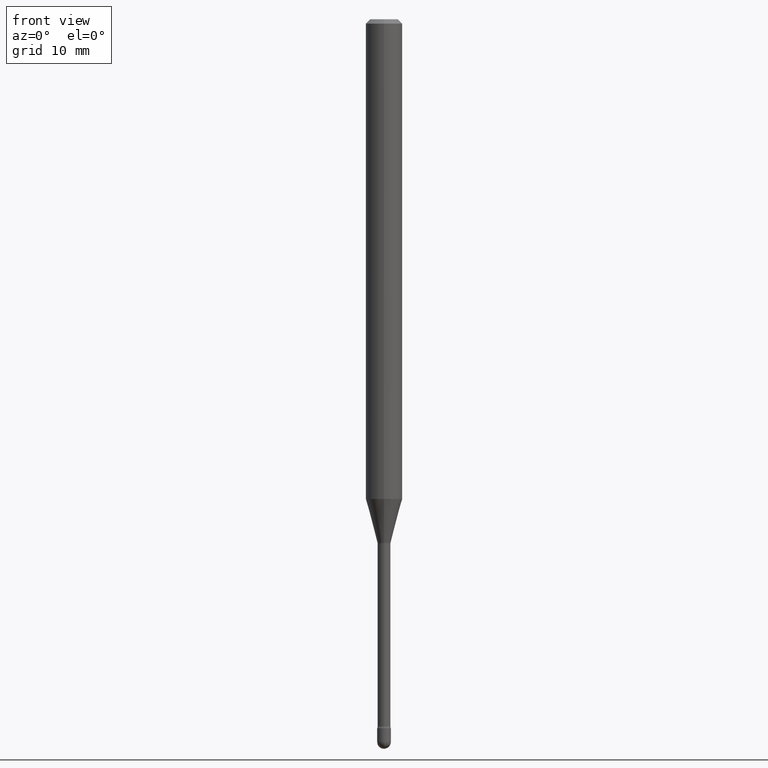
[diagram: clean part render]
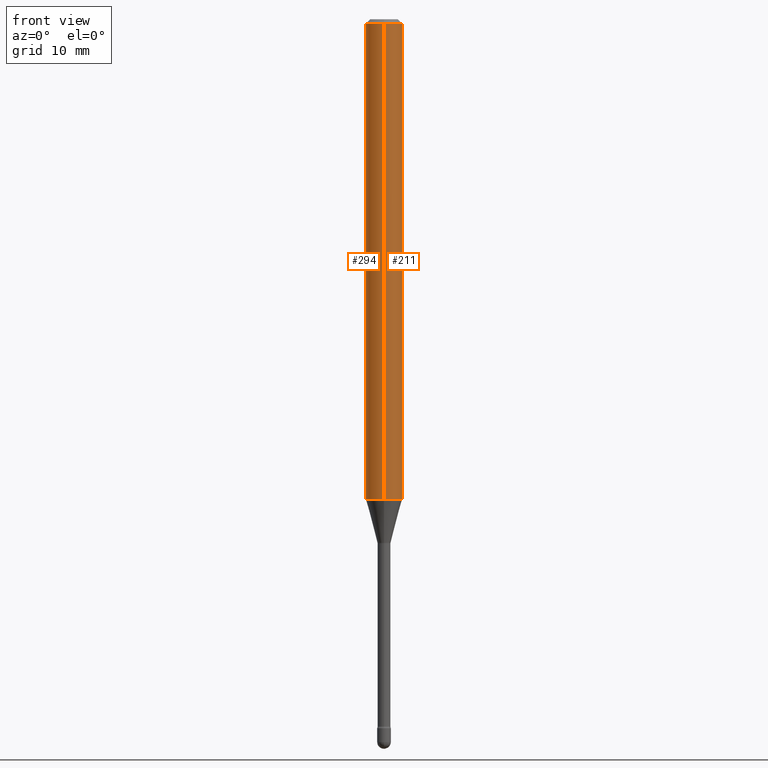
[diagram: same view with one multi-face feature highlighted, each face labeled with its STEP entity id]
A machine part, front view. The highlighted faces form ONE feature: a constant-radius fillet chain: 2 tangent blend faces with common blend radius 1.5875 mm. The faces share edges in the B-rep.
Their STEP definitions:
[1] entity #294 (Cylinder):
#3 = DIRECTION ( 'NONE',  ( -2.445456806742390166E-29, 3.491498522728124281E-15, 1.000000000000000000 ) ) ;
#11 = ORIENTED_EDGE ( 'NONE', *, *, #80, .F. ) ;
#12 = CARTESIAN_POINT ( 'NONE',  ( 4.440892098500625669E-16, 0.06250000000000000000, 2.598547412207382957E-16 ) ) ;
#15 = CARTESIAN_POINT ( 'NONE',  ( -1.169113584055446105E-44, 1.669184350826100908E-30, 4.780733988912460139E-16 ) ) ;
#55 = EDGE_CURVE ( 'NONE', #392, #259, #240, .T. ) ;
#65 = FACE_OUTER_BOUND ( 'NONE', #344, .T. ) ;
#80 = EDGE_CURVE ( 'NONE', #392, #419, #125, .T. ) ;
#85 = VECTOR ( 'NONE', #274, 39.37007874015748143 ) ;
#87 = DIRECTION ( 'NONE',  ( -2.445456806742390166E-29, 3.491498522728124281E-15, 1.000000000000000000 ) ) ;
#111 = ORIENTED_EDGE ( 'NONE', *, *, #150, .F. ) ;
#113 = DIRECTION ( 'NONE',  ( -6.982962677686265922E-15, -1.000000000000000000, 3.491498522728124676E-15 ) ) ;
#122 = CARTESIAN_POINT ( 'NONE',  ( 4.020881578463291233E-29, -5.740809673089514133E-15, -1.644225147374217988 ) ) ;
#125 = LINE ( 'NONE', #12, #223 ) ;
#138 = DIRECTION ( 'NONE',  ( -2.445456806742389886E-29, 3.491498522728124281E-15, 1.000000000000000000 ) ) ;
#143 = AXIS2_PLACEMENT_3D ( 'NONE', #268, #3, #405 ) ;
#150 = EDGE_CURVE ( 'NONE', #419, #162, #358, .T. ) ;
#157 = CYLINDRICAL_SURFACE ( 'NONE', #555, 0.06250000000000000000 ) ;
#162 = VERTEX_POINT ( 'NONE', #527 ) ;
#186 = LINE ( 'NONE', #446, #85 ) ;
#199 = EDGE_CURVE ( 'NONE', #259, #162, #186, .T. ) ;
#223 = VECTOR ( 'NONE', #138, 39.37007874015748143 ) ;
#238 = CARTESIAN_POINT ( 'NONE',  ( 4.440892098501030453E-16, 0.06249999999999995143, -0.01500000000000030129 ) ) ;
#240 = CIRCLE ( 'NONE', #388, 0.06250000000000000000 ) ;
#250 = DIRECTION ( 'NONE',  ( -2.445456806742390166E-29, 3.491498522728124281E-15, 1.000000000000000000 ) ) ;
#259 = VERTEX_POINT ( 'NONE', #407 ) ;
#268 = CARTESIAN_POINT ( 'NONE',  ( 3.668185210113605428E-31, -5.237247784092215166E-17, -0.01500000000000008271 ) ) ;
#274 = DIRECTION ( 'NONE',  ( -2.445456806742389886E-29, 3.491498522728124281E-15, 1.000000000000000000 ) ) ;
#294 = ADVANCED_FACE ( 'NONE', ( #65 ), #157, .T. ) ;
#344 = EDGE_LOOP ( 'NONE', ( #11, #450, #409, #111 ) ) ;
#358 = CIRCLE ( 'NONE', #143, 0.06250000000000000000 ) ;
#388 = AXIS2_PLACEMENT_3D ( 'NONE', #122, #87, #437 ) ;
#392 = VERTEX_POINT ( 'NONE', #408 ) ;
#405 = DIRECTION ( 'NONE',  ( -6.982962677686265922E-15, -1.000000000000000000, 3.483106191921935554E-15 ) ) ;
#407 = CARTESIAN_POINT ( 'NONE',  ( -4.364351673553515854E-16, -0.06250000000000575928, -1.644225147374217544 ) ) ;
#408 = CARTESIAN_POINT ( 'NONE',  ( 4.440892098501025523E-16, 0.06249999999999423378, -1.644225147374218210 ) ) ;
#409 = ORIENTED_EDGE ( 'NONE', *, *, #199, .T. ) ;
#419 = VERTEX_POINT ( 'NONE', #238 ) ;
#437 = DIRECTION ( 'NONE',  ( -6.982962677686265922E-15, -1.000000000000000000, 4.370956789862821150E-15 ) ) ;
#446 = CARTESIAN_POINT ( 'NONE',  ( -4.364351673553916201E-16, -0.06250000000000000000, 6.962920565617538308E-16 ) ) ;
#450 = ORIENTED_EDGE ( 'NONE', *, *, #55, .T. ) ;
#527 = CARTESIAN_POINT ( 'NONE',  ( -4.364351673553912750E-16, -0.06250000000000005551, -0.01499999999999986587 ) ) ;
#555 = AXIS2_PLACEMENT_3D ( 'NONE', #15, #250, #113 ) ;
[2] entity #211 (Cylinder):
#12 = CARTESIAN_POINT ( 'NONE',  ( 4.440892098500625669E-16, 0.06250000000000000000, 2.598547412207382957E-16 ) ) ;
#27 = ORIENTED_EDGE ( 'NONE', *, *, #199, .F. ) ;
#69 = EDGE_CURVE ( 'NONE', #259, #392, #255, .T. ) ;
#70 = DIRECTION ( 'NONE',  ( -2.445456806742390166E-29, 3.491498522728124281E-15, 1.000000000000000000 ) ) ;
#80 = EDGE_CURVE ( 'NONE', #392, #419, #125, .T. ) ;
#85 = VECTOR ( 'NONE', #274, 39.37007874015748143 ) ;
#116 = ORIENTED_EDGE ( 'NONE', *, *, #327, .F. ) ;
#125 = LINE ( 'NONE', #12, #223 ) ;
#138 = DIRECTION ( 'NONE',  ( -2.445456806742389886E-29, 3.491498522728124281E-15, 1.000000000000000000 ) ) ;
#142 = ORIENTED_EDGE ( 'NONE', *, *, #69, .T. ) ;
#144 = DIRECTION ( 'NONE',  ( -6.982962677686265922E-15, -1.000000000000000000, 3.491498522728124676E-15 ) ) ;
#151 = DIRECTION ( 'NONE',  ( -6.982962677686265922E-15, -1.000000000000000000, 3.483106191921935554E-15 ) ) ;
#162 = VERTEX_POINT ( 'NONE', #527 ) ;
#169 = ORIENTED_EDGE ( 'NONE', *, *, #80, .T. ) ;
#186 = LINE ( 'NONE', #446, #85 ) ;
#199 = EDGE_CURVE ( 'NONE', #259, #162, #186, .T. ) ;
#211 = ADVANCED_FACE ( 'NONE', ( #403 ), #443, .T. ) ;
#214 = AXIS2_PLACEMENT_3D ( 'NONE', #499, #452, #151 ) ;
#223 = VECTOR ( 'NONE', #138, 39.37007874015748143 ) ;
#237 = CARTESIAN_POINT ( 'NONE',  ( -1.169113584055446105E-44, 1.669184350826100908E-30, 4.780733988912460139E-16 ) ) ;
#238 = CARTESIAN_POINT ( 'NONE',  ( 4.440892098501030453E-16, 0.06249999999999995143, -0.01500000000000030129 ) ) ;
#255 = CIRCLE ( 'NONE', #485, 0.06250000000000000000 ) ;
#259 = VERTEX_POINT ( 'NONE', #407 ) ;
#263 = AXIS2_PLACEMENT_3D ( 'NONE', #237, #351, #144 ) ;
#274 = DIRECTION ( 'NONE',  ( -2.445456806742389886E-29, 3.491498522728124281E-15, 1.000000000000000000 ) ) ;
#293 = CARTESIAN_POINT ( 'NONE',  ( 4.020881578463291233E-29, -5.740809673089514133E-15, -1.644225147374217988 ) ) ;
#327 = EDGE_CURVE ( 'NONE', #162, #419, #558, .T. ) ;
#351 = DIRECTION ( 'NONE',  ( -2.445456806742390166E-29, 3.491498522728124281E-15, 1.000000000000000000 ) ) ;
#376 = EDGE_LOOP ( 'NONE', ( #142, #169, #116, #27 ) ) ;
#392 = VERTEX_POINT ( 'NONE', #408 ) ;
#403 = FACE_OUTER_BOUND ( 'NONE', #376, .T. ) ;
#407 = CARTESIAN_POINT ( 'NONE',  ( -4.364351673553515854E-16, -0.06250000000000575928, -1.644225147374217544 ) ) ;
#408 = CARTESIAN_POINT ( 'NONE',  ( 4.440892098501025523E-16, 0.06249999999999423378, -1.644225147374218210 ) ) ;
#419 = VERTEX_POINT ( 'NONE', #238 ) ;
#443 = CYLINDRICAL_SURFACE ( 'NONE', #263, 0.06250000000000000000 ) ;
#446 = CARTESIAN_POINT ( 'NONE',  ( -4.364351673553916201E-16, -0.06250000000000000000, 6.962920565617538308E-16 ) ) ;
#452 = DIRECTION ( 'NONE',  ( -2.445456806742390166E-29, 3.491498522728124281E-15, 1.000000000000000000 ) ) ;
#485 = AXIS2_PLACEMENT_3D ( 'NONE', #293, #70, #509 ) ;
#499 = CARTESIAN_POINT ( 'NONE',  ( 3.668185210113605428E-31, -5.237247784092215166E-17, -0.01500000000000008271 ) ) ;
#509 = DIRECTION ( 'NONE',  ( -6.982962677686265922E-15, -1.000000000000000000, 4.370956789862821150E-15 ) ) ;
#527 = CARTESIAN_POINT ( 'NONE',  ( -4.364351673553912750E-16, -0.06250000000000005551, -0.01499999999999986587 ) ) ;
#558 = CIRCLE ( 'NONE', #214, 0.06250000000000000000 ) ;